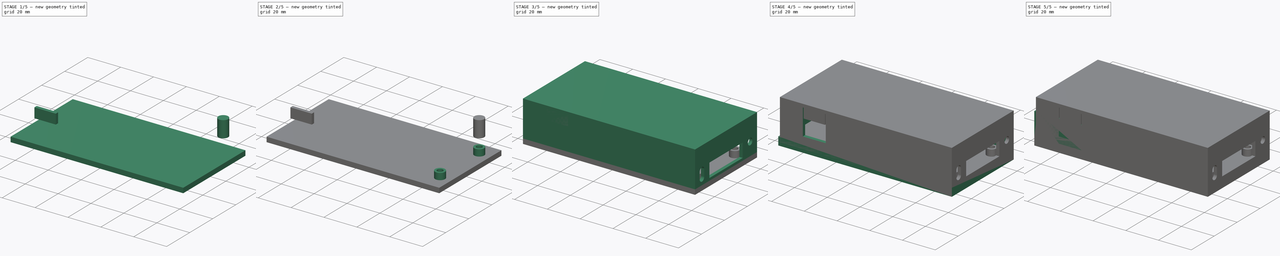
[diagram: build sequence overview — one tinted view per stage of 5, left to right]
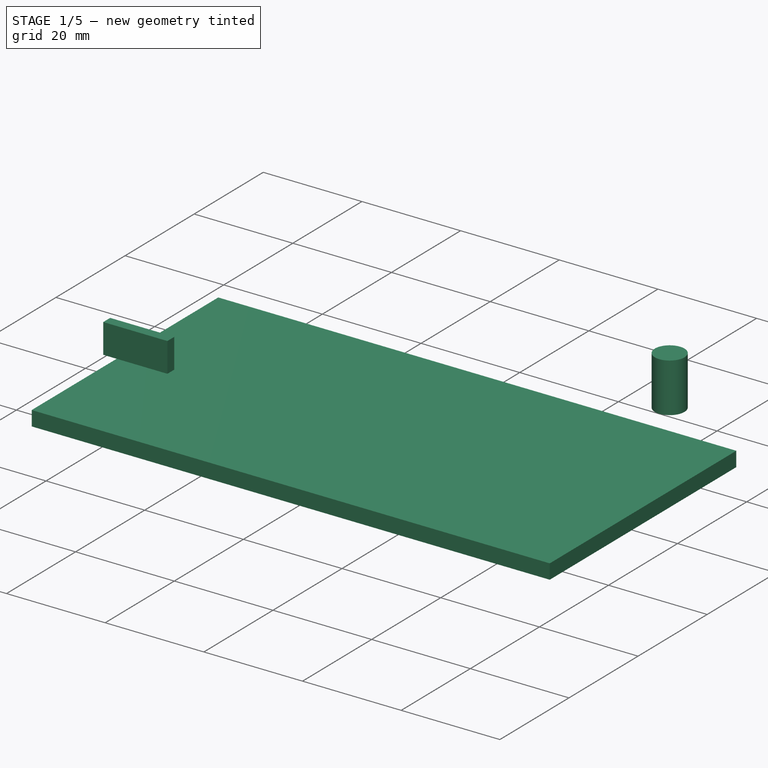
[diagram: stage 1 of 5 — iso view after this stage's code; geometry added in this stage tinted green]
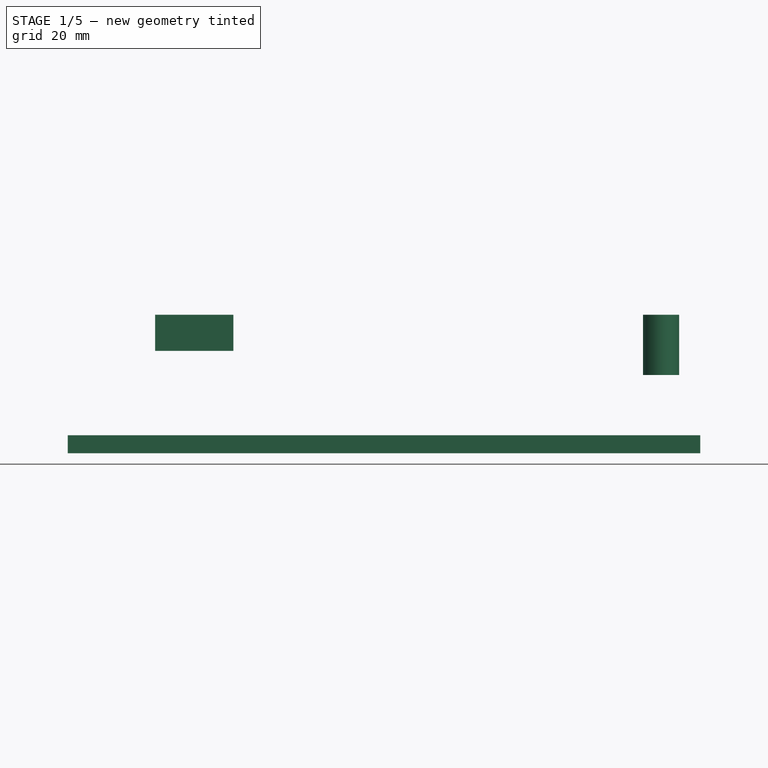
[diagram: stage 1 of 5 — front view after this stage's code; geometry added in this stage tinted green]
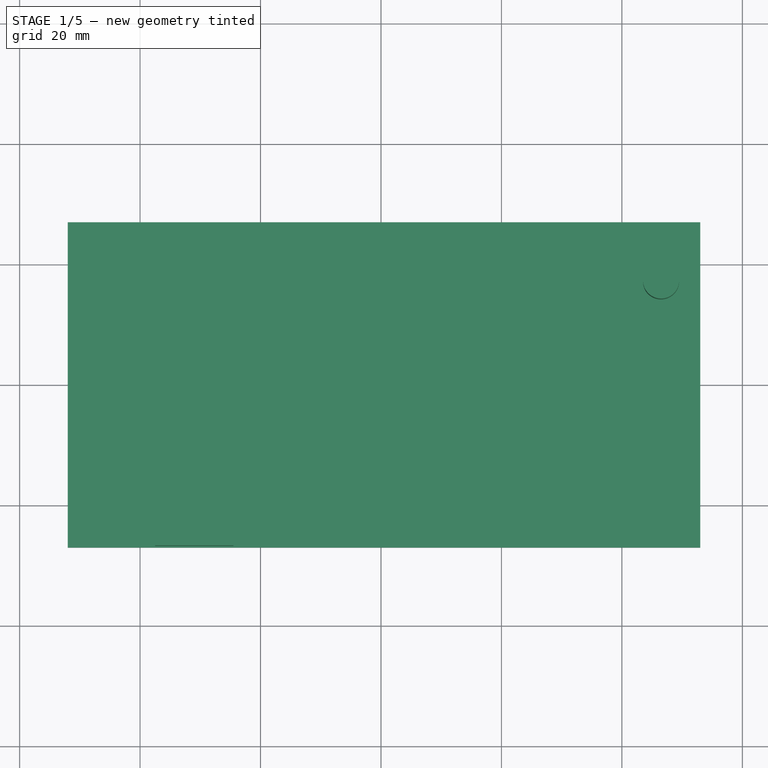
[diagram: stage 1 of 5 — top view after this stage's code; geometry added in this stage tinted green]
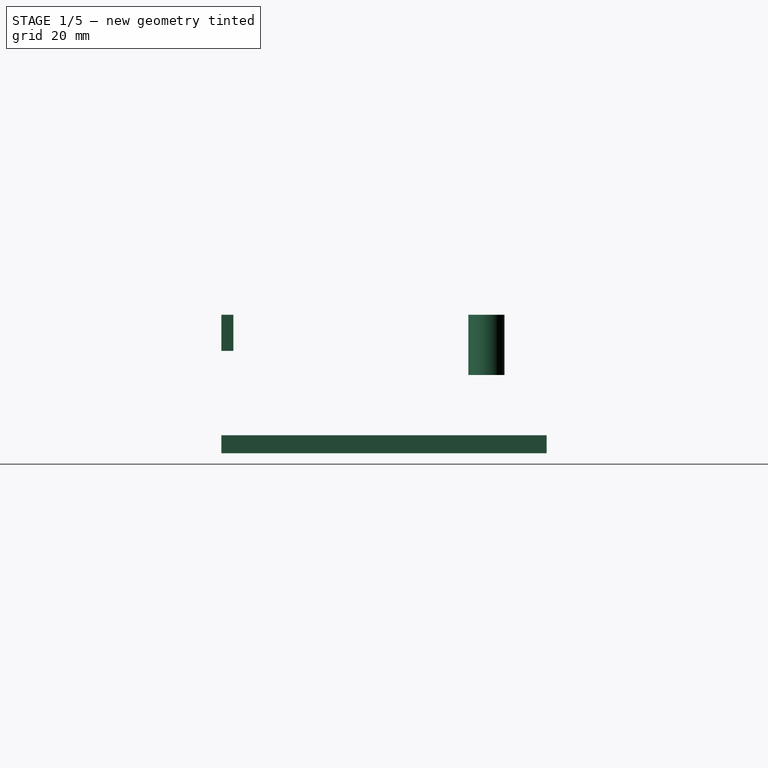
[diagram: stage 1 of 5 — right view after this stage's code; geometry added in this stage tinted green]
FCSTD DOCUMENT  (FreeCAD 0.18.4R)
Label: UltraSatan
License: All rights reserved
LicenseURL: http://en.wikipedia.org/wiki/All_rights_reserved
objects: App::Part×29, Sketcher::SketchObject×27, Part::Feature×27, PartDesign::Pad×14, PartDesign::Body×14, PartDesign::Pocket×13, PartDesign::FeatureBase×4, PartDesign::Hole×1
note: 128 computed .brp shape members not serialized (recipe doc carries the construction recipe); baked Part::Feature solids carry a one-line shape summary decoded from their .brp

FEATURE [Sketcher::SketchObject] Sketch016
  MapMode = 5
  Support = -> [XY_Plane014]
  sketch-geometry (4):
    g0: LineSegment StartX=-52 StartY=27 StartZ=0 EndX=53 EndY=27 EndZ=0
    g1: LineSegment StartX=53 StartY=27 StartZ=0 EndX=53 EndY=-27 EndZ=0
    g2: LineSegment StartX=53 StartY=-27 StartZ=0 EndX=-52 EndY=-27 EndZ=0
    g3: LineSegment StartX=-52 StartY=-27 StartZ=0 EndX=-52 EndY=27 EndZ=0
  constraints (11):
    c: Coincident(g0,g1)
    c: Coincident(g1,g2)
    c: Coincident(g2,g3)
    c: Coincident(g3,g0)
    c: Horizontal(g0)
    c: Horizontal(g2)
    c: Vertical(g1)
    c: Block(g0)
    c: Block(g1)
    c: Block(g2)
    c: Block(g3)
FEATURE [PartDesign::Pad] Pad009  label="Собственно дно"
  Length = 3
  Length2 = 100
  Profile = -> Sketch016
  Reversed = true
  Type = 0
FEATURE [PartDesign::Body] Body006  label="Передняя стенка"
  Group = -> [Sketch021,Pad012,Sketch022,Pocket007,Sketch023,Pocket008,Sketch024,Pocket009]
  Origin = -> Origin016
  Tip = -> Pocket009
FEATURE [Sketcher::SketchObject] Sketch025
  AttachmentOffset = pos=(0,0,20) rot=(0,0,1;0rad)
  MapMode = 5
  Placement = pos=(0,0,20) rot=(0,0,1;0rad)
  Support = -> [XY_Plane018]
  sketch-geometry (2):
    g0: Circle CenterX=46.5 CenterY=17 CenterZ=0 NormalX=0 NormalY=0 NormalZ=1 AngleXU=0 Radius=3
    g1: GeomPoint X=51 Y=25 Z=0
  constraints (5):
    c: Diameter(g0) = 6
    c: DistanceX(g1) = 51
    c: DistanceY(g1) = 25
    c: DistanceX(g0,g1) = 4.5
    c: DistanceY(g0,g1) = 8
FEATURE [PartDesign::Pad] Pad013
  Length = 10
  Length2 = 100
  Profile = -> Sketch025
  Reversed = true
  Type = 0
FEATURE [PartDesign::Body] Body014  label="Стойка задн"
  BaseFeature = -> Body012
  Group = -> [Clone003]
  Origin = -> Origin052
  Placement = pos=(-76.7,18.4,0) rot=(0,0,1;0rad)
  Tip = -> Clone003
FEATURE [Sketcher::SketchObject] Sketch028
  MapMode = 5
  Placement = pos=(0,0,-3) rot=(1,0,0;3.14159rad)
  Support = -> [Pad009]
  sketch-geometry (1):
    g0: Circle CenterX=46.5 CenterY=17 CenterZ=0 NormalX=0 NormalY=0 NormalZ=1 AngleXU=0 Radius=3.25
  constraints (3):
    c: Diameter(g0) = 6.5
    c: DistanceX(g0) = 46.5
    c: DistanceY(g0) = 17
FEATURE [PartDesign::Pocket] Pocket011  label="Отверстие под шляпку винта"
  BaseFeature = -> Pad009
  Length = 2
  Length2 = 100
  Profile = -> Sketch028
  Type = 0
FEATURE [Sketcher::SketchObject] Sketch029
  MapMode = 5
  Placement = pos=(0,0,-3) rot=(1,0,0;3.14159rad)
  Support = -> [Pocket011]
  sketch-geometry (1):
    g0: Circle CenterX=46.5 CenterY=-17 CenterZ=0 NormalX=0 NormalY=0 NormalZ=1 AngleXU=0 Radius=3.25
  constraints (3):
    c: Diameter(g0) = 6.5
    c: DistanceX(g0) = 46.5
    c: DistanceY(g0) = -17
FEATURE [PartDesign::Pocket] Pocket012
  BaseFeature = -> Pocket011
  Length = 2
  Length2 = 100
  Profile = -> Sketch029
  Type = 0
FEATURE [PartDesign::Body] Body004  label="Дно"
  Group = -> [Sketch016,Pad009,Sketch028,Pocket011,Sketch029,Pocket012,Sketch030,Pocket013]
  Origin = -> Origin014
  Tip = -> Pocket013
FEATURE [App::Part] Part  label="Низ"
  Group = -> [Body,Body004,Body002,Body003,Body005,Body012,Body013,Body014]
  Origin = -> Origin
FEATURE [PartDesign::Hole] Hole
  BaseFeature = -> Pad013
  Depth = 9
  DepthType = 0
  Diameter = 2
  DrillPoint = 1
  DrillPointAngle = 118
  HoleCutCountersinkAngle = 90
  HoleCutDepth = 0
  HoleCutDiameter = 0
  HoleCutType = 0
  ModelActualThread = false
  Profile = -> Pad013 [Face3]
  Tapered = false
  TaperedAngle = 90
  ThreadAngle = 0
  ThreadClass = 0
  ThreadCutOffInner = 0
  ThreadCutOffOuter = 0
  ThreadDirection = 0
  ThreadFit = 0
  ThreadPitch = 0
  ThreadSize = 0
  ThreadType = 0
  Threaded = false
FEATURE [PartDesign::Body] Body010  label="Стойка задняя"
  BaseFeature = -> Body008
  Group = -> [Clone001]
  Origin = -> Origin047
  Placement = pos=(-76.7,-15.6,0) rot=(0,0,1;0rad)
  Tip = -> Clone001
FEATURE [Sketcher::SketchObject] Sketch031
  AttachmentOffset = pos=(0,0,20) rot=(0,0,1;0rad)
  MapMode = 5
  Placement = pos=(0,0,20) rot=(0,0,1;0rad)
  Support = -> [XY_Plane053]
  sketch-geometry (4):
    g0: LineSegment StartX=-37.5 StartY=-25 StartZ=0 EndX=-24.5 EndY=-25 EndZ=0
    g1: LineSegment StartX=-24.5 StartY=-25 StartZ=0 EndX=-24.5 EndY=-27 EndZ=0
    g2: LineSegment StartX=-24.5 StartY=-27 StartZ=0 EndX=-37.5 EndY=-27 EndZ=0
    g3: LineSegment StartX=-37.5 StartY=-27 StartZ=0 EndX=-37.5 EndY=-25 EndZ=0
  constraints (11):
    c: Coincident(g0,g1)
    c: Coincident(g1,g2)
    c: Coincident(g2,g3)
    c: Coincident(g3,g0)
    c: Horizontal(g0)
    c: Horizontal(g2)
    c: Vertical(g1)
    c: Block(g0)
    c: Block(g1)
    c: Block(g2)
    c: Block(g3)
FEATURE [PartDesign::Pad] Pad015
  Length = 6
  Length2 = 100
  Profile = -> Sketch031
  Reversed = true
  Type = 0
FEATURE [PartDesign::Body] Body015  label="Левая стенка002"
  Group = -> [Sketch031,Pad015]
  Origin = -> Origin053
  Tip = -> Pad015
FEATURE [App::Part] Part001  label="Верх"
  Group = -> [Sketch013,Pad006,Body006,Body007,Body008,Body009,Body010,Body015]
  Origin = -> Origin010
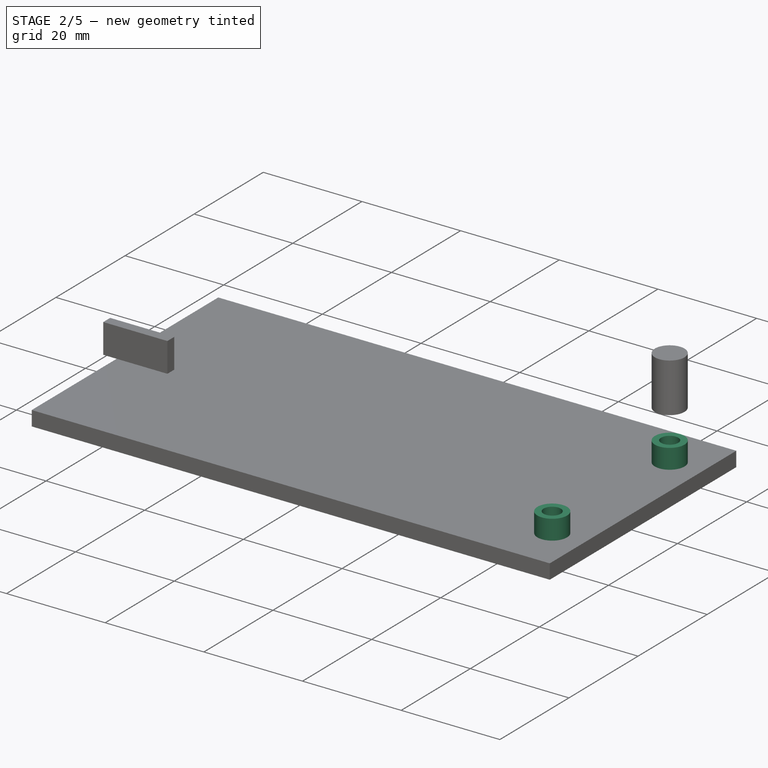
[diagram: stage 2 of 5 — iso view after this stage's code; geometry added in this stage tinted green]
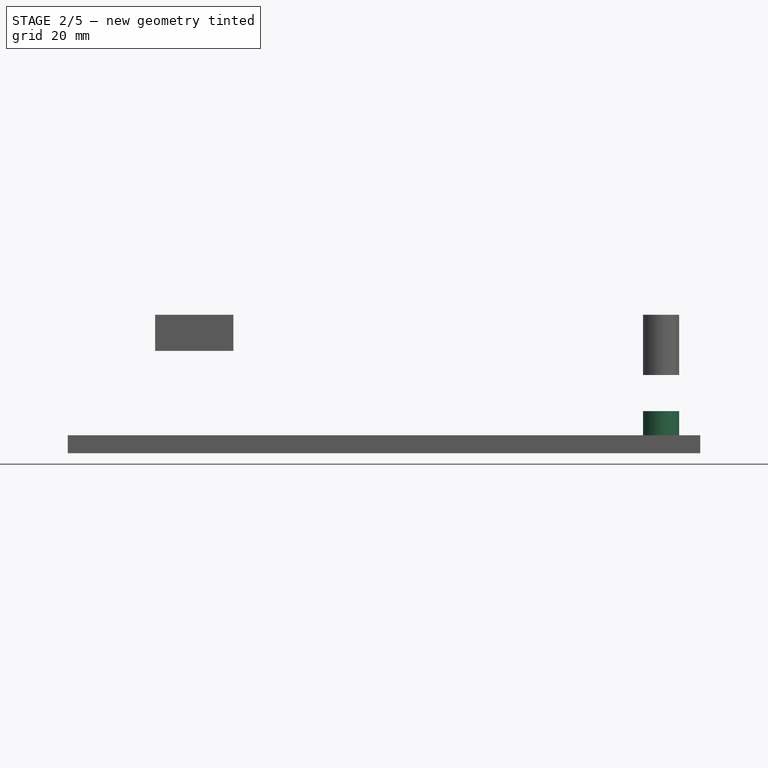
[diagram: stage 2 of 5 — front view after this stage's code; geometry added in this stage tinted green]
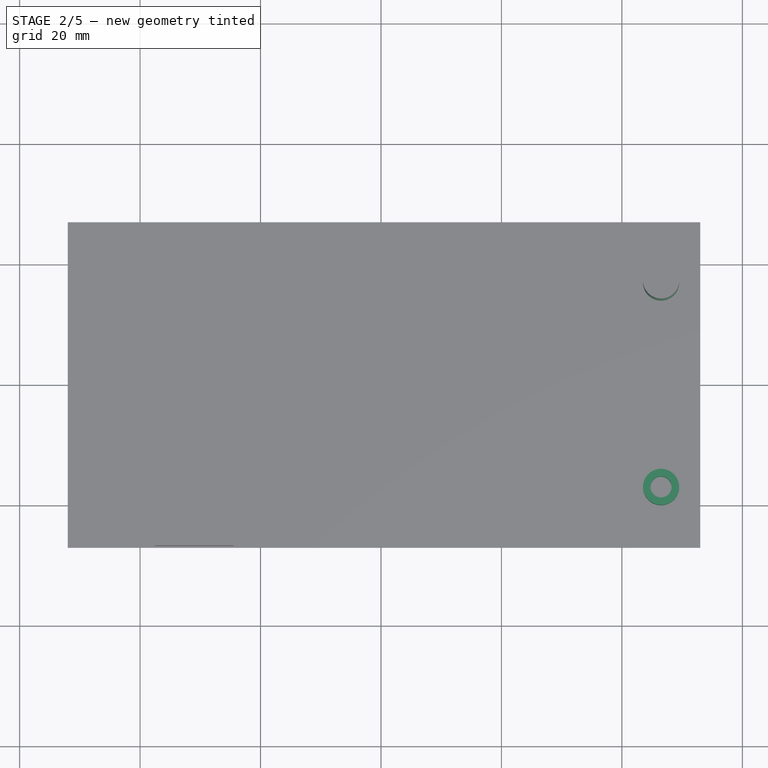
[diagram: stage 2 of 5 — top view after this stage's code; geometry added in this stage tinted green]
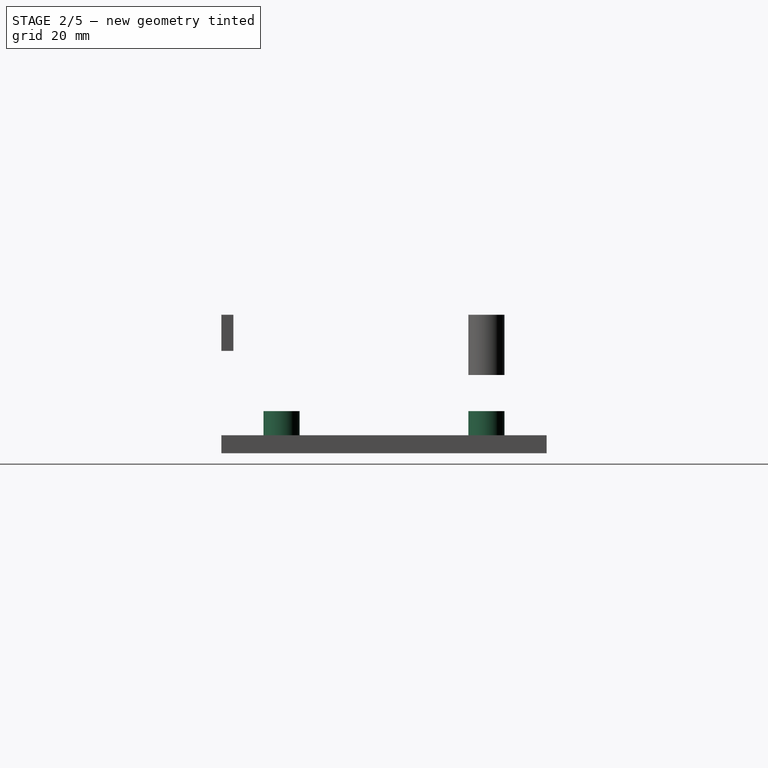
[diagram: stage 2 of 5 — right view after this stage's code; geometry added in this stage tinted green]
FEATURE [Part::Feature] Part__Feature007  label="SOLID005"
  shape: bbox 26 x 26 x 1.5 mm, 2684 faces (baked)
FEATURE [App::Part] LQFP_176_24x24mm_P0_5mm  label="LQFP-176_24x24mm_P0.5mm"
  Group = -> [Part__Feature007]
  Origin = -> Origin019
  Placement = pos=(-8.23,8.738,1.65) rot=(0,0,1;0rad)
FEATURE [Part::Feature] Part__Feature008  label="SOLID006"
  shape: bbox 6.128 x 6.515 x 7 mm, 49 faces (baked)
FEATURE [App::Part] CP_Radial_D5_0mm_P2_00mm  label="CP_Radial_D5.0mm_P2.00mm"
  Group = -> [Part__Feature008]
  Origin = -> Origin020
  Placement = pos=(12.92,19.91,1.65) rot=(0,0,1;1.5708rad)
FEATURE [Part::Feature] Part__Feature009  label="SOLID007"
  shape: bbox 1.6 x 0.8 x 0.45 mm, 26 faces (baked)
FEATURE [App::Part] R_0603_1608Metric
  Group = -> [Part__Feature009]
  Origin = -> Origin021
  Placement = pos=(43.5,16.5,1.65) rot=(0,0,1;1.5708rad)
FEATURE [Part::Feature] Part__Feature010  label="SOLID008"
  shape: bbox 9.886 x 10.23 x 10 mm, 54 faces (baked)
FEATURE [App::Part] CP_Radial_D8_0mm_P3_50mm  label="CP_Radial_D8.0mm_P3.50mm"
  Group = -> [Part__Feature010]
  Origin = -> Origin022
  Placement = pos=(-35.42,21.61,1.65) rot=(0,0,-1;1.5708rad)
FEATURE [Part::Feature] Part__Feature011  label="SOLID009"
  shape: bbox 9.886 x 10.23 x 10 mm, 54 faces (baked)
FEATURE [App::Part] CP_Radial_D8_0mm_P3_50mm001  label="CP_Radial_D8.0mm_P3.50mm001"
  Group = -> [Part__Feature011]
  Origin = -> Origin023
  Placement = pos=(-25.92,11.35,1.65) rot=(0,0,-1;1.5708rad)
FEATURE [Part::Feature] Part__Feature012  label="COMPOUND002"
  shape: bbox 9.505 x 14.5 x 13.83 mm, 40 faces, 2 solids (baked)
FEATURE [App::Part] User_Library_dc_range___dc_connector_4840_2201_001  label="User_Library-dc_range_-_dc_connector[4840_2201]001"
  Group = -> [Part__Feature012]
  Origin = -> Origin024
  Placement = pos=(-38.56,-12.84,1.65) rot=(0.57735,-0.57735,-0.57735;2.0944rad)
FEATURE [Part::Feature] Part__Feature013  label="SOLID010"
  shape: bbox 15 x 10 x 4.42 mm, 88 faces (baked)
FEATURE [App::Part] TO_263_3_TabPin4  label="TO-263-3_TabPin4"
  Group = -> [Part__Feature013]
  Origin = -> Origin025
  Placement = pos=(0.105,-17.86,1.65) rot=(0,0,1;0rad)
FEATURE [Part::Feature] Part__Feature014  label="SOLID011"
  shape: bbox 9.886 x 10.23 x 10 mm, 54 faces (baked)
FEATURE [App::Part] CP_Radial_D8_0mm_P3_50mm002  label="CP_Radial_D8.0mm_P3.50mm002"
  Group = -> [Part__Feature014]
  Origin = -> Origin026
  Placement = pos=(-10.765,-20.555,1.65) rot=(0,0,1;1.5708rad)
FEATURE [Part::Feature] Part__Feature015  label="SOLID012"
  shape: bbox 28 x 25 x 3.2 mm, 11 faces (baked)
FEATURE [App::Part] sdmmc
  Group = -> [Part__Feature015]
  Origin = -> Origin027
  Placement = pos=(36.86,-0.12,1.65) rot=(0,0,1;1.5708rad)
FEATURE [Part::Feature] Part__Feature016  label="SOLID013"
  shape: bbox 28 x 25 x 3.2 mm, 11 faces (baked)
FEATURE [App::Part] sdmmc001
  Group = -> [Part__Feature016]
  Origin = -> Origin028
  Placement = pos=(36.86,-0.12,-0.05) rot=(-0.707107,0.707107,0;3.14159rad)
FEATURE [Part::Feature] Part__Feature017  label="SOLID014"
  shape: bbox 6.128 x 6.515 x 7 mm, 49 faces (baked)
FEATURE [App::Part] CP_Radial_D5_0mm_P2_00mm001  label="CP_Radial_D5.0mm_P2.00mm001"
  Group = -> [Part__Feature017]
  Origin = -> Origin029
  Placement = pos=(19.56,-0.775,1.65) rot=(0,0,1;1.5708rad)
FEATURE [Part::Feature] Part__Feature018  label="SOLID015"
  shape: bbox 1.6 x 0.8 x 0.45 mm, 26 faces (baked)
FEATURE [App::Part] R_0603_1608Metric001
  Group = -> [Part__Feature018]
  Origin = -> Origin030
  Placement = pos=(42.555,-22.318,-0.05) rot=(0,1,0;3.14159rad)
FEATURE [Part::Feature] Part__Feature019  label="SOLID016"
  shape: bbox 1.6 x 0.8 x 0.45 mm, 26 faces (baked)
FEATURE [App::Part] R_0603_1608Metric002
  Group = -> [Part__Feature019]
  Origin = -> Origin031
  Placement = pos=(41.305,-16.035,1.65) rot=(0,0,1;0rad)
FEATURE [Part::Feature] Part__Feature020  label="SOLID017"
  shape: bbox 13.55 x 33.06 x 12.1 mm, 462 faces (baked)
FEATURE [App::Part] IDC_Header_2x10_P2_54mm_Horizontal001  label="IDC-Header_2x10_P2.54mm_Horizontal001"
  Group = -> [Part__Feature020]
  Origin = -> Origin032
  Placement = pos=(-42.15,-5.81,1.65) rot=(0,0,1;3.14159rad)
FEATURE [Part::Feature] Part__Feature021  label="SOLID018"
  shape: bbox 2.5 x 3 x 1.2 mm, 76 faces (baked)
FEATURE [App::Part] SOT_23  label="SOT-23"
  Group = -> [Part__Feature021]
  Origin = -> Origin033
  Placement = pos=(-34.895,0.5625,-0.05) rot=(0,1,0;3.14159rad)
FEATURE [Part::Feature] Part__Feature022  label="SOLID019"
  shape: bbox 1.6 x 0.8 x 0.45 mm, 26 faces (baked)
FEATURE [App::Part] R_0603_1608Metric003
  Group = -> [Part__Feature022]
  Origin = -> Origin034
  Placement = pos=(-30.45,-2.025,-0.05) rot=(0.707107,0.707107,0;3.14159rad)
FEATURE [Part::Feature] Part__Feature023  label="SOLID020"
  shape: bbox 6 x 8.7 x 1.75 mm, 246 faces (baked)
FEATURE [App::Part] SOIC_14_3_9x8_7mm_P1_27mm  label="SOIC-14_3.9x8.7mm_P1.27mm"
  Group = -> [Part__Feature023]
  Origin = -> Origin035
  Placement = pos=(-31.85,-11.04,-0.05) rot=(0,1,0;3.14159rad)
FEATURE [Part::Feature] Part__Feature024  label="SOLID021"
  shape: bbox 11.05 x 4.65 x 7 mm, 26 faces (baked)
FEATURE [App::Part] Crystal_HC49_4H_Vertical  label="Crystal_HC49-4H_Vertical"
  Group = -> [Part__Feature024]
  Origin = -> Origin036
  Placement = pos=(-8,17,-0.55) rot=(0,1,0;3.14159rad)
FEATURE [Part::Feature] Part__Feature025  label="SOLID022"
  shape: bbox 3.4 x 3.8 x 10.8 mm, 16 faces (baked)
FEATURE [App::Part] LED_D3_0mm003  label="LED_D3.0mm003"
  Group = -> [Part__Feature025]
  Origin = -> Origin037
  Placement = pos=(46.5,22.27,2.65) rot=(0.57735,-0.57735,0.57735;4.18879rad)
FEATURE [Part::Feature] Part__Feature026  label="SOLID023"
  shape: bbox 3.4 x 3.8 x 10.8 mm, 16 faces (baked)
FEATURE [App::Part] LED_D3_0mm004  label="LED_D3.0mm004"
  Group = -> [Part__Feature026]
  Origin = -> Origin038
  Placement = pos=(46.5,-22.27,-1.05) rot=(0.57735,0.57735,0.57735;2.0944rad)
FEATURE [Part::Feature] Part__Feature027  label="SOLID024"
  shape: bbox 3.4 x 3.8 x 10.8 mm, 16 faces (baked)
FEATURE [App::Part] LED_D3_0mm005  label="LED_D3.0mm005"
  Group = -> [Part__Feature027]
  Origin = -> Origin039
  Placement = pos=(46.5,-19.73,2.65) rot=(0.57735,-0.57735,0.57735;4.18879rad)
FEATURE [Part::Feature] Part__Feature028  label="SOLID025"
  shape: bbox 1.6 x 0.8 x 0.45 mm, 26 faces (baked)
FEATURE [App::Part] R_0603_1608Metric004
  Group = -> [Part__Feature028]
  Origin = -> Origin040
  Placement = pos=(-27.5,0.75,1.65) rot=(0,0,-1;1.5708rad)
FEATURE [Part::Feature] Part__Feature029  label="SOLID026"
  shape: bbox 1.6 x 0.8 x 0.45 mm, 26 faces (baked)
FEATURE [App::Part] R_0603_1608Metric005
  Group = -> [Part__Feature029]
  Origin = -> Origin041
  Placement = pos=(-27.5,3.5,1.65) rot=(0,0,1;3.14159rad)
FEATURE [Part::Feature] Part__Feature030  label="SOLID027"
  shape: bbox 1.6 x 0.8 x 0.45 mm, 26 faces (baked)
FEATURE [App::Part] R_0603_1608Metric006
  Group = -> [Part__Feature030]
  Origin = -> Origin042
  Placement = pos=(-31.5,4.5,1.65) rot=(0,0,1;3.14159rad)
FEATURE [Part::Feature] Part__Feature031  label="SOLID028"
  Placement = pos=(0,0,-2) rot=(0,0,1;0rad)
  shape: bbox 15.06 x 19.01 x 10.5 mm, 128 faces (baked)
FEATURE [App::Part] User_Library_KCD11001  label="User_Library-KCD012"
  Group = -> [Part__Feature031]
  Origin = -> Origin043
  Placement = pos=(-30.7,-19.67,6.15) rot=(0,0,1;3.14159rad)
FEATURE [Part::Feature] Part__Feature032  label="SOLID029"
  shape: bbox 6 x 6 x 4.2 mm, 60 faces (baked)
FEATURE [App::Part] L_Bourns_SRN6045TA
  Group = -> [Part__Feature032]
  Origin = -> Origin044
  Placement = pos=(-22.05,18.69,-0.05) rot=(-0.707107,0.707107,0;3.14159rad)
FEATURE [Part::Feature] Part__Feature033  label="COMPOUND003"
  shape: bbox 99 x 48 x 1.6 mm, 116 faces (baked)
FEATURE [App::Part] Open_CASCADE_STEP_translator_6_9_1001  label="Open CASCADE STEP translator 6.9 002"
  Group = -> [LQFP_176_24x24mm_P0_5mm,CP_Radial_D5_0mm_P2_00mm,R_0603_1608Metric,CP_Radial_D8_0mm_P3_50mm,CP_Radial_D8_0mm_P3_50mm001,User_Library_dc_range___dc_connector_4840_2201_001,TO_263_3_TabPin4,CP_Radial_D8_0mm_P3_50mm002,sdmmc,sdmmc001,CP_Radial_D5_0mm_P2_00mm001,R_0603_1608Metric001,R_0603_1608Metric002,IDC_Header_2x10_P2_54mm_Horizontal001,SOT_23,R_0603_1608Metric003,SOIC_14_3_9x8_7mm_P1_27mm,+10 more]
  Origin = -> Origin045
  Placement = pos=(0,0,5) rot=(0,0,1;0rad)
FEATURE [Sketcher::SketchObject] Sketch026
  MapMode = 5
  Support = -> [XY_Plane050]
  sketch-geometry (1):
    g0: Circle CenterX=46.5 CenterY=17 CenterZ=0 NormalX=0 NormalY=0 NormalZ=1 AngleXU=0 Radius=3
  constraints (3):
    c: Radius(g0) = 3
    c: DistanceX(g0) = 46.5
    c: DistanceY(g-1,g0) = 17
FEATURE [PartDesign::Pad] Pad014
  Length = 4
  Length2 = 100
  Profile = -> Sketch026
  Type = 0
FEATURE [Sketcher::SketchObject] Sketch027
  MapMode = 5
  Placement = pos=(0,0,0) rot=(1,0,0;3.14159rad)
  Support = -> [Pad014]
  sketch-geometry (1):
    g0: Circle CenterX=46.5 CenterY=-17 CenterZ=0 NormalX=0 NormalY=0 NormalZ=1 AngleXU=0 Radius=1.75
  constraints (3):
    c: DistanceY(g0) = -17
    c: Diameter(g0) = 3.5
    c: DistanceX(g0) = 46.5
FEATURE [PartDesign::Pocket] Pocket010
  BaseFeature = -> Pad014
  Length = 2
  Length2 = 100
  Profile = -> Sketch027
  Type = 2
FEATURE [PartDesign::Body] Body012  label="Стойка лев"
  Group = -> [Sketch026,Pad014,Sketch027,Pocket010]
  Origin = -> Origin050
  Placement = pos=(0,-34,0) rot=(0,0,1;0rad)
  Tip = -> Pocket010
FEATURE [PartDesign::FeatureBase] Clone002
  BaseFeature = -> Body012
FEATURE [PartDesign::Body] Body013  label="Стойка прав"
  BaseFeature = -> Body012
  Group = -> [Clone002]
  Origin = -> Origin051
  Tip = -> Clone002
FEATURE [PartDesign::FeatureBase] Clone003
  BaseFeature = -> Body012
  Placement = pos=(0,-34,0) rot=(0,0,1;0rad)
FEATURE [Sketcher::SketchObject] Sketch030
  ExternalGeometry = -> [Pocket012]
  MapMode = 5
  Placement = pos=(0,0,-3) rot=(1,0,0;3.14159rad)
  Support = -> [Pocket012]
  sketch-geometry (1):
    g0: Circle CenterX=-30.2 CenterY=-1.4 CenterZ=0 NormalX=0 NormalY=0 NormalZ=1 AngleXU=0 Radius=3.25
  constraints (3):
    c: Diameter(g0) = 6.5
    c: DistanceX(g0,g-3) = 76.7
    c: DistanceY(g-3,g0) = 15.6
FEATURE [PartDesign::Pocket] Pocket013
  BaseFeature = -> Pocket012
  Length = 2
  Length2 = 100
  Profile = -> Sketch030
  Type = 0
FEATURE [PartDesign::Body] Body008  label="Стойка правая"
  Group = -> [Sketch025,Pad013,Hole]
  Origin = -> Origin018
  Tip = -> Hole
FEATURE [PartDesign::FeatureBase] Clone
  BaseFeature = -> Body008
FEATURE [PartDesign::Body] Body009  label="Стойка левая"
  BaseFeature = -> Body008
  Group = -> [Clone]
  Origin = -> Origin046
  Placement = pos=(0,-34,0) rot=(0,0,1;0rad)
  Tip = -> Clone
FEATURE [PartDesign::FeatureBase] Clone001
  BaseFeature = -> Body008
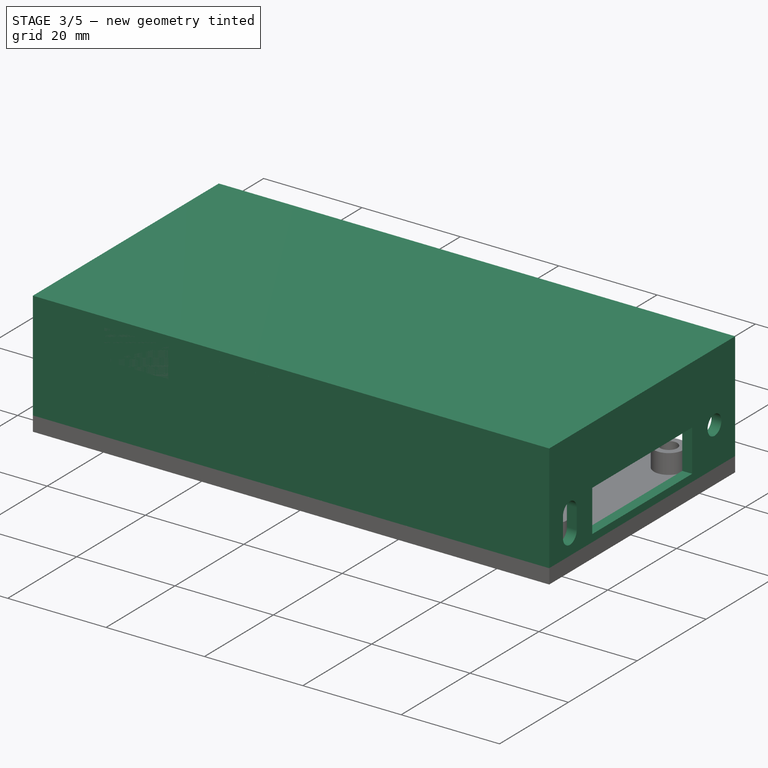
[diagram: stage 3 of 5 — iso view after this stage's code; geometry added in this stage tinted green]
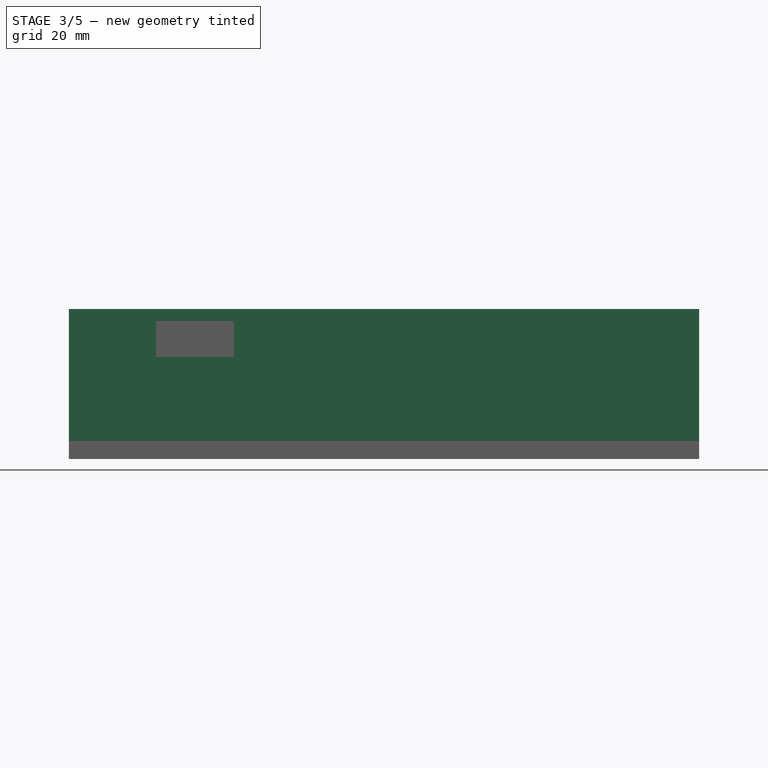
[diagram: stage 3 of 5 — front view after this stage's code; geometry added in this stage tinted green]
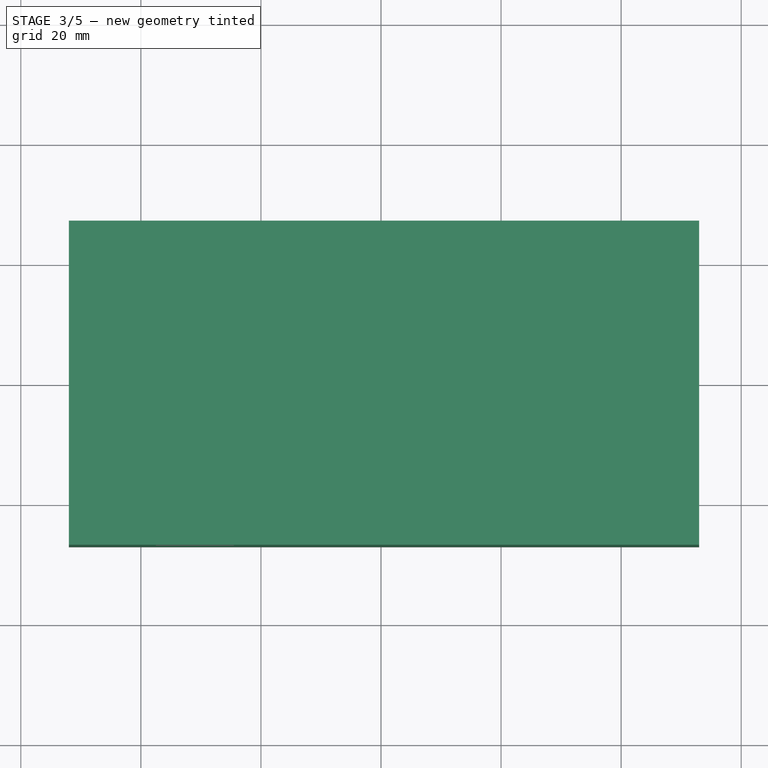
[diagram: stage 3 of 5 — top view after this stage's code; geometry added in this stage tinted green]
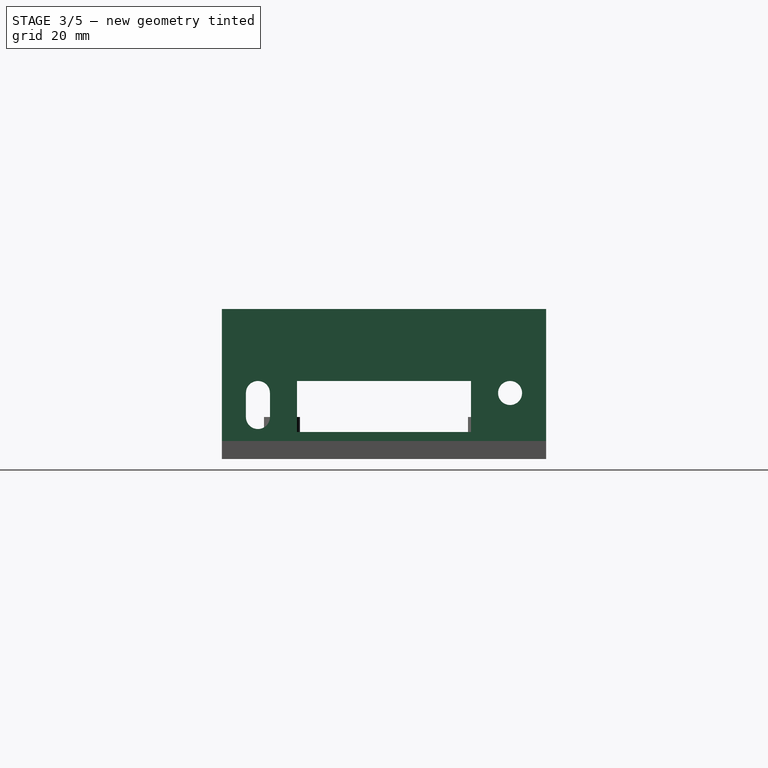
[diagram: stage 3 of 5 — right view after this stage's code; geometry added in this stage tinted green]
FEATURE [PartDesign::Body] Body002  label="Правая стенка"
  Group = -> [Sketch014,Pad007]
  Origin = -> Origin012
  Tip = -> Pad007
FEATURE [Sketcher::SketchObject] Sketch015
  MapMode = 5
  Support = -> [XY_Plane013]
  sketch-geometry (4):
    g0: LineSegment StartX=-52 StartY=-25 StartZ=0 EndX=51 EndY=-25 EndZ=0
    g1: LineSegment StartX=51 StartY=-25 StartZ=0 EndX=51 EndY=-27 EndZ=0
    g2: LineSegment StartX=51 StartY=-27 StartZ=0 EndX=-52 EndY=-27 EndZ=0
    g3: LineSegment StartX=-52 StartY=-27 StartZ=0 EndX=-52 EndY=-25 EndZ=0
  constraints (11):
    c: Coincident(g0,g1)
    c: Coincident(g1,g2)
    c: Coincident(g2,g3)
    c: Coincident(g3,g0)
    c: Horizontal(g0)
    c: Horizontal(g2)
    c: Vertical(g1)
    c: Block(g0)
    c: Block(g1)
    c: Block(g2)
    c: Block(g3)
FEATURE [PartDesign::Pad] Pad008  label="Собственно левая стенка"
  Length = 20
  Length2 = 100
  Profile = -> Sketch015
  Type = 0
FEATURE [PartDesign::Body] Body003  label="Левая стенка001"
  Group = -> [Sketch015,Pad008,Sketch017,Pocket006]
  Origin = -> Origin013
  Tip = -> Pocket006
FEATURE [Sketcher::SketchObject] Sketch020
  AttachmentOffset = pos=(0,0,22) rot=(0,0,1;0rad)
  MapMode = 5
  Placement = pos=(0,0,22) rot=(0,0,1;0rad)
  Support = -> [XY_Plane017]
  sketch-geometry (4):
    g0: LineSegment StartX=-52 StartY=27 StartZ=0 EndX=53 EndY=27 EndZ=0
    g1: LineSegment StartX=53 StartY=27 StartZ=0 EndX=53 EndY=-27 EndZ=0
    g2: LineSegment StartX=53 StartY=-27 StartZ=0 EndX=-52 EndY=-27 EndZ=0
    g3: LineSegment StartX=-52 StartY=-27 StartZ=0 EndX=-52 EndY=27 EndZ=0
  constraints (11):
    c: Coincident(g0,g1)
    c: Coincident(g1,g2)
    c: Coincident(g2,g3)
    c: Coincident(g3,g0)
    c: Horizontal(g0)
    c: Horizontal(g2)
    c: Vertical(g1)
    c: Block(g0)
    c: Block(g1)
    c: Block(g2)
    c: Block(g3)
FEATURE [PartDesign::Pad] Pad011
  Length = 2
  Length2 = 100
  Profile = -> Sketch020
  Reversed = true
  Type = 0
FEATURE [PartDesign::Body] Body007  label="Крышка"
  Group = -> [Sketch020,Pad011]
  Origin = -> Origin017
  Tip = -> Pad011
FEATURE [Sketcher::SketchObject] Sketch021
  AttachmentOffset = pos=(0,0,20) rot=(0,0,1;0rad)
  MapMode = 5
  Placement = pos=(0,0,20) rot=(0,0,1;0rad)
  Support = -> [XY_Plane016]
  sketch-geometry (4):
    g0: LineSegment StartX=53 StartY=27 StartZ=0 EndX=51 EndY=27 EndZ=0
    g1: LineSegment StartX=51 StartY=27 StartZ=0 EndX=51 EndY=-27 EndZ=0
    g2: LineSegment StartX=51 StartY=-27 StartZ=0 EndX=53 EndY=-27 EndZ=0
    g3: LineSegment StartX=53 StartY=-27 StartZ=0 EndX=53 EndY=27 EndZ=0
  constraints (11):
    c: Coincident(g0,g1)
    c: Coincident(g1,g2)
    c: Coincident(g2,g3)
    c: Coincident(g3,g0)
    c: Horizontal(g0)
    c: Horizontal(g2)
    c: Vertical(g1)
    c: Block(g0)
    c: Block(g1)
    c: Block(g2)
    c: Block(g3)
FEATURE [PartDesign::Pad] Pad012
  Length = 20
  Length2 = 100
  Profile = -> Sketch021
  Reversed = true
  Type = 0
FEATURE [Sketcher::SketchObject] Sketch022  label="Access LEDs"
  MapMode = 5
  Placement = pos=(53,0,0) rot=(0.57735,0.57735,0.57735;2.0944rad)
  Support = -> [Pad012]
  sketch-geometry (4):
    g0: LineSegment StartX=-19 StartY=4 StartZ=0 EndX=-19 EndY=8 EndZ=0
    g1: LineSegment StartX=-23 StartY=4 StartZ=0 EndX=-23 EndY=8 EndZ=0
    g2: ArcOfCircle CenterX=-21 CenterY=4 CenterZ=0 NormalX=0 NormalY=0 NormalZ=1 AngleXU=0 Radius=2 StartAngle=3.14159 EndAngle=6.28319
    g3: ArcOfCircle CenterX=-21 CenterY=8 CenterZ=0 NormalX=0 NormalY=0 NormalZ=1 AngleXU=0 Radius=2 StartAngle=0 EndAngle=3.14159
  constraints (10):
    c: Vertical(g0)
    c: Vertical(g1)
    c: Coincident(g2,g1)
    c: Coincident(g2,g0)
    c: Coincident(g3,g0)
    c: Coincident(g3,g1)
    c: Block(g0)
    c: Block(g1)
    c: Block(g2)
    c: Block(g3)
FEATURE [PartDesign::Pocket] Pocket007
  BaseFeature = -> Pad012
  Length = 5
  Length2 = 100
  Profile = -> Sketch022
  Type = 2
FEATURE [Sketcher::SketchObject] Sketch023
  MapMode = 5
  Placement = pos=(53,0,0) rot=(0.57735,0.57735,0.57735;2.0944rad)
  Support = -> [Pocket007]
  sketch-geometry (1):
    g0: Circle CenterX=21 CenterY=8 CenterZ=0 NormalX=0 NormalY=0 NormalZ=1 AngleXU=0 Radius=2
  constraints (1):
    c: Block(g0)
FEATURE [PartDesign::Pocket] Pocket008
  BaseFeature = -> Pocket007
  Length = 5
  Length2 = 100
  Profile = -> Sketch023
  Type = 2
FEATURE [Sketcher::SketchObject] Sketch024
  MapMode = 5
  Placement = pos=(53,0,0) rot=(0.57735,0.57735,0.57735;2.0944rad)
  Support = -> [Pocket008]
  sketch-geometry (4):
    g0: LineSegment StartX=-14.5 StartY=10 StartZ=0 EndX=14.5 EndY=10 EndZ=0
    g1: LineSegment StartX=14.5 StartY=10 StartZ=0 EndX=14.5 EndY=1.5 EndZ=0
    g2: LineSegment StartX=14.5 StartY=1.5 StartZ=0 EndX=-14.5 EndY=1.5 EndZ=0
    g3: LineSegment StartX=-14.5 StartY=1.5 StartZ=0 EndX=-14.5 EndY=10 EndZ=0
  constraints (11):
    c: Coincident(g0,g1)
    c: Coincident(g1,g2)
    c: Coincident(g2,g3)
    c: Coincident(g3,g0)
    c: Horizontal(g0)
    c: Horizontal(g2)
    c: Vertical(g1)
    c: Block(g0)
    c: Block(g1)
    c: Block(g2)
    c: Block(g3)
FEATURE [PartDesign::Pocket] Pocket009
  BaseFeature = -> Pocket008
  Length = 5
  Length2 = 100
  Profile = -> Sketch024
  Type = 2
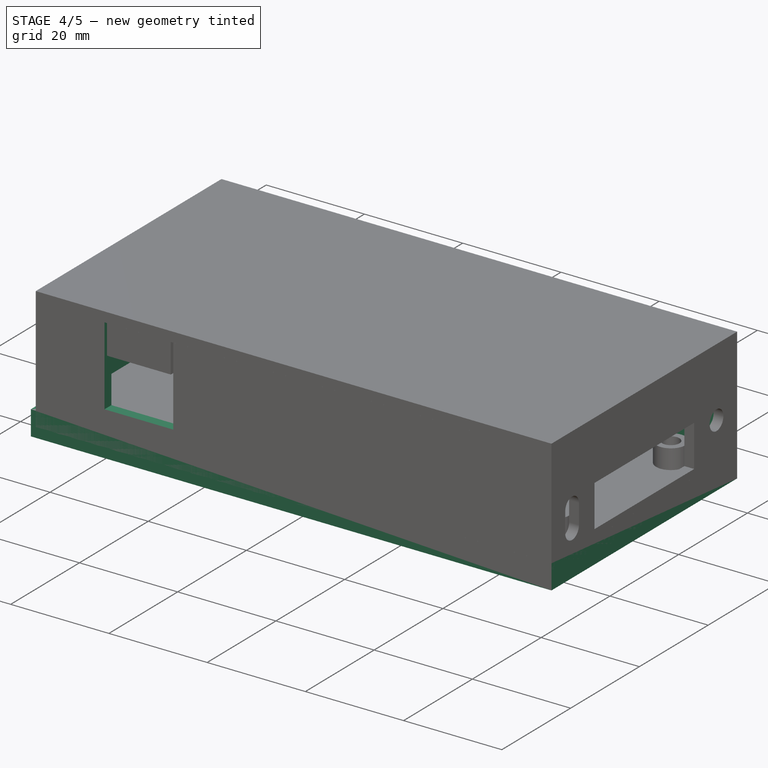
[diagram: stage 4 of 5 — iso view after this stage's code; geometry added in this stage tinted green]
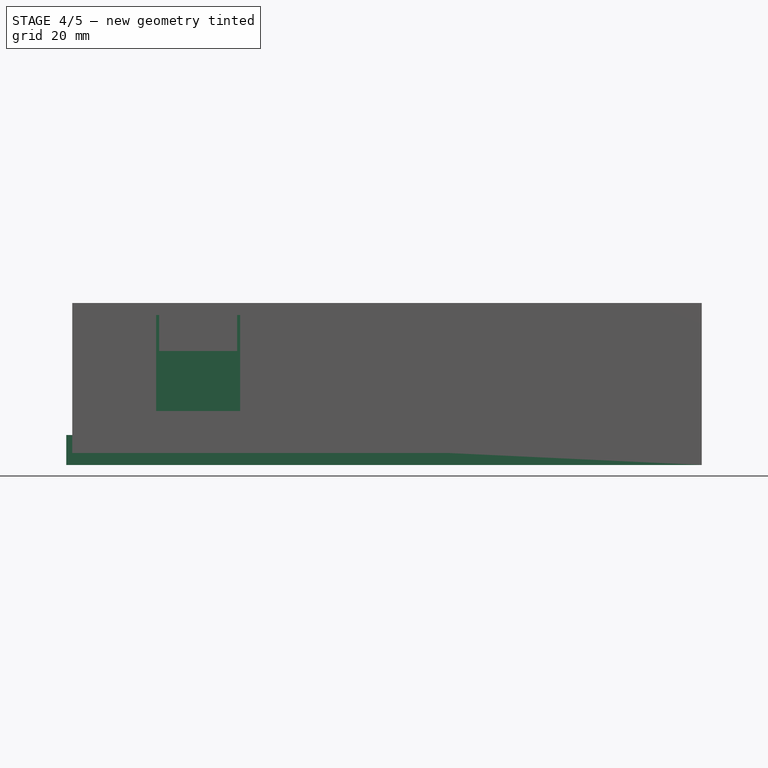
[diagram: stage 4 of 5 — front view after this stage's code; geometry added in this stage tinted green]
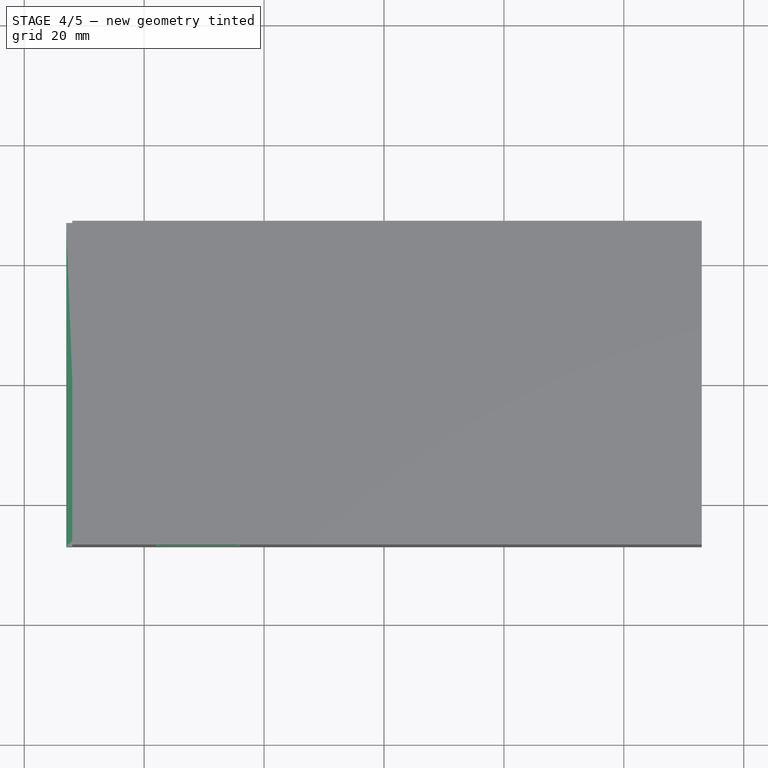
[diagram: stage 4 of 5 — top view after this stage's code; geometry added in this stage tinted green]
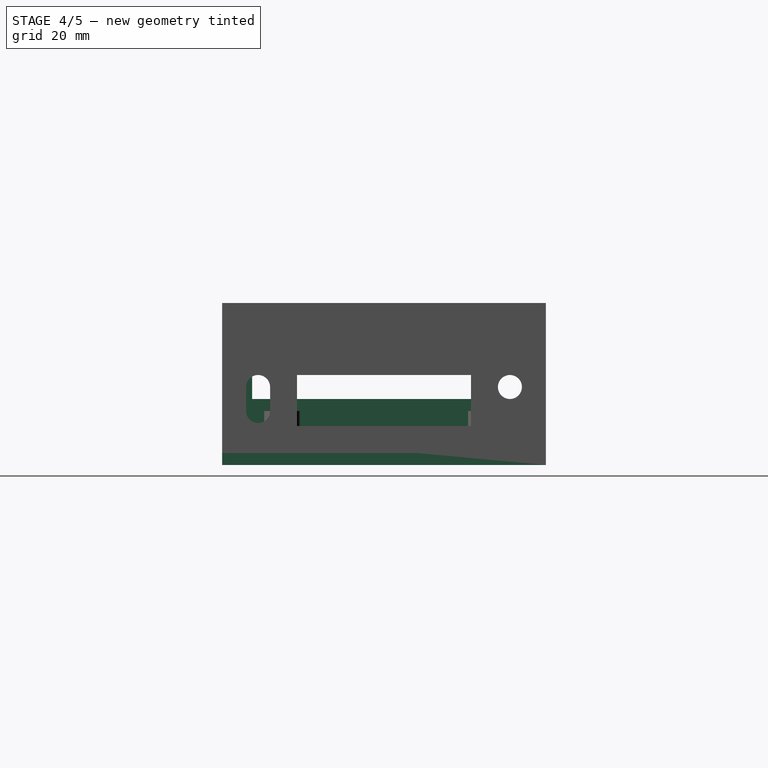
[diagram: stage 4 of 5 — right view after this stage's code; geometry added in this stage tinted green]
FEATURE [Sketcher::SketchObject] Sketch  label="Эскиз платы"
  MapMode = 5
  Support = -> [XY_Plane001]
  sketch-geometry (15):
    g0: LineSegment [constr] StartX=-49.5 StartY=24 StartZ=0 EndX=49.5 EndY=24 EndZ=0
    g1: LineSegment [constr] StartX=49.5 StartY=24 StartZ=0 EndX=49.5 EndY=-24 EndZ=0
    g2: LineSegment [constr] StartX=49.5 StartY=-24 StartZ=0 EndX=-24 EndY=-24 EndZ=0
    g3: LineSegment [constr] StartX=-24 StartY=-24 StartZ=0 EndX=-24 EndY=-19.5 EndZ=0
    g4: LineSegment [constr] StartX=-24 StartY=-19.5 StartZ=0 EndX=-37.5 EndY=-19.5 EndZ=0
    g5: LineSegment [constr] StartX=-37.5 StartY=-19.5 StartZ=0 EndX=-37.5 EndY=-24 EndZ=0
    g6: LineSegment [constr] StartX=-37.5 StartY=-24 StartZ=0 EndX=-49.5 EndY=-24 EndZ=0
    g7: LineSegment [constr] StartX=-49.5 StartY=-24 StartZ=0 EndX=-49.5 EndY=24 EndZ=0
    g8: Circle [constr] CenterX=-30.2 CenterY=1.5 CenterZ=0 NormalX=0 NormalY=0 NormalZ=1 AngleXU=0 Radius=1.5
    g9: Circle [constr] CenterX=46.5 CenterY=17 CenterZ=0 NormalX=0 NormalY=0 NormalZ=1 AngleXU=0 Radius=1.5
    g10: Circle [constr] CenterX=46.5 CenterY=-17 CenterZ=0 NormalX=0 NormalY=0 NormalZ=1 AngleXU=0 Radius=1.5
    g11: LineSegment StartX=-51 StartY=25 StartZ=0 EndX=51 EndY=25 EndZ=0
    g12: LineSegment StartX=51 StartY=25 StartZ=0 EndX=51 EndY=-25 EndZ=0
    g13: LineSegment StartX=51 StartY=-25 StartZ=0 EndX=-51 EndY=-25 EndZ=0
    g14: LineSegment StartX=-51 StartY=-25 StartZ=0 EndX=-51 EndY=25 EndZ=0
  constraints (42):
    c: Coincident(g0,g1)
    c: Coincident(g1,g2)
    c: Coincident(g2,g3)
    c: Coincident(g3,g4)
    c: Coincident(g4,g5)
    c: Vertical(g5)
    c: Coincident(g5,g6)
    c: Horizontal(g6)
    c: Coincident(g6,g7)
    c: Coincident(g7,g0)
    c: Parallel(g0,g2)
    c: Parallel(g7,g-2)
    c: Parallel(g5,g3)
    c: Parallel(g4,g-1)
    c: DistanceX(g0,g0) = 99
    c: Symmetric(g0,g0,g-2)
    c: Equal(g1,g7)
    c: Symmetric(g0,g1,g-1)
    c: DistanceY(g1,g1) = 48
    c: DistanceX(g2,g2) = 73.5
    c: DistanceX(g4,g4) = 13.5
    c: DistanceY(g5,g5) = 4.5
    c: DistanceX(g0,g8) = 19.3
    c: DistanceY(g3,g8) = 21
    c: DistanceX(g9,g0) = 3
    c: Diameter(g9) = 3
    c: DistanceY(g9,g0) = 7
    c: Diameter(g8) = 3
    c: Diameter(g10) = 3
    c: DistanceX(g10,g1) = 3
    c: DistanceY(g1,g10) = 7
    c: Coincident(g11,g12)
    c: Coincident(g12,g13)
    c: Coincident(g13,g14)
    c: Coincident(g14,g11)
    c: Horizontal(g11)
    c: Horizontal(g13)
    c: Vertical(g14)
    c: Block(g11)
    c: Block(g14)
    c: Block(g13)
    c: Block(g12)
FEATURE [Sketcher::SketchObject] Sketch001  label="Эскиз основания"
  MapMode = 5
  Support = -> [XY_Plane001]
  sketch-geometry (4):
    g0: LineSegment StartX=-53 StartY=27 StartZ=0 EndX=53 EndY=27 EndZ=0
    g1: LineSegment StartX=53 StartY=27 StartZ=0 EndX=53 EndY=-27 EndZ=0
    g2: LineSegment StartX=53 StartY=-27 StartZ=0 EndX=-53 EndY=-27 EndZ=0
    g3: LineSegment StartX=-53 StartY=-27 StartZ=0 EndX=-53 EndY=27 EndZ=0
  constraints (10):
    c: Coincident(g0,g1)
    c: Coincident(g1,g2)
    c: Coincident(g2,g3)
    c: Coincident(g3,g0)
    c: Horizontal(g0)
    c: Vertical(g3)
    c: Block(g1)
    c: Block(g0)
    c: Block(g3)
    c: Block(g2)
FEATURE [PartDesign::Pad] Pad  label="Основание"
  Length = 5
  Length2 = 100
  Profile = -> Sketch001
  Reversed = true
  Type = 0
FEATURE [PartDesign::Pocket] Pocket  label="Нижняя крышка"
  BaseFeature = -> Pad
  Length = 3
  Length2 = 100
  Profile = -> Sketch
  Type = 0
FEATURE [PartDesign::Body] Body  label="Нижняя часть"
  Group = -> [Sketch,Sketch001,Pad,Pocket,Sketch002,Pocket001,Sketch004,Pocket002,Sketch005,Pad001,Sketch006,Pocket003,Sketch007,Pad002,Sketch008,Pad003]
  Origin = -> Origin001
  Tip = -> Pad003
FEATURE [Sketcher::SketchObject] Sketch013  label="Основание задника"
  MapMode = 5
  Placement = pos=(0,0,20) rot=(1,0,0;3.14159rad)
  sketch-geometry (4):
    g0: LineSegment StartX=-52 StartY=22 StartZ=0 EndX=-50 EndY=22 EndZ=0
    g1: LineSegment StartX=-50 StartY=22 StartZ=0 EndX=-50 EndY=-23 EndZ=0
    g2: LineSegment StartX=-50 StartY=-23 StartZ=0 EndX=-52 EndY=-23 EndZ=0
    g3: LineSegment StartX=-52 StartY=-23 StartZ=0 EndX=-52 EndY=22 EndZ=0
  constraints (11):
    c: Coincident(g0,g1)
    c: Coincident(g1,g2)
    c: Coincident(g2,g3)
    c: Coincident(g3,g0)
    c: Horizontal(g0)
    c: Horizontal(g2)
    c: Vertical(g1)
    c: Block(g0)
    c: Block(g1)
    c: Block(g2)
    c: Block(g3)
FEATURE [PartDesign::Pad] Pad006  label="Задник"
  Length = 2
  Length2 = 100
  Placement = pos=(0,0,20) rot=(1,0,0;3.14159rad)
  Profile = -> Sketch013
  Type = 0
FEATURE [Sketcher::SketchObject] Sketch014
  MapMode = 5
  Support = -> [XY_Plane012]
  sketch-geometry (4):
    g0: LineSegment StartX=-52 StartY=27 StartZ=0 EndX=51 EndY=27 EndZ=0
    g1: LineSegment StartX=51 StartY=27 StartZ=0 EndX=51 EndY=25 EndZ=0
    g2: LineSegment StartX=51 StartY=25 StartZ=0 EndX=-52 EndY=25 EndZ=0
    g3: LineSegment StartX=-52 StartY=25 StartZ=0 EndX=-52 EndY=27 EndZ=0
  constraints (11):
    c: Coincident(g0,g1)
    c: Coincident(g1,g2)
    c: Coincident(g2,g3)
    c: Coincident(g3,g0)
    c: Horizontal(g0)
    c: Horizontal(g2)
    c: Vertical(g1)
    c: Block(g0)
    c: Block(g1)
    c: Block(g2)
    c: Block(g3)
FEATURE [PartDesign::Pad] Pad007  label="Собственно правая стенка"
  Length = 20
  Length2 = 100
  Profile = -> Sketch014
  Type = 0
FEATURE [Sketcher::SketchObject] Sketch017
  MapMode = 5
  Placement = pos=(0,-27,0) rot=(1,0,0;1.5708rad)
  Support = -> [Pad008]
  sketch-geometry (4):
    g0: LineSegment StartX=-38 StartY=20 StartZ=0 EndX=-24 EndY=20 EndZ=0
    g1: LineSegment StartX=-24 StartY=20 StartZ=0 EndX=-24 EndY=4 EndZ=0
    g2: LineSegment StartX=-24 StartY=4 StartZ=0 EndX=-38 EndY=4 EndZ=0
    g3: LineSegment StartX=-38 StartY=4 StartZ=0 EndX=-38 EndY=20 EndZ=0
  constraints (11):
    c: Coincident(g0,g1)
    c: Coincident(g1,g2)
    c: Coincident(g2,g3)
    c: Coincident(g3,g0)
    c: Horizontal(g0)
    c: Horizontal(g2)
    c: Vertical(g1)
    c: Block(g0)
    c: Block(g1)
    c: Block(g2)
    c: Block(g3)
FEATURE [Sketcher::SketchObject] Sketch018
  MapMode = 5
  Support = -> [XY_Plane015]
  sketch-geometry (4):
    g0: LineSegment StartX=-52 StartY=25 StartZ=0 EndX=-50 EndY=25 EndZ=0
    g1: LineSegment StartX=-50 StartY=25 StartZ=0 EndX=-50 EndY=-25 EndZ=0
    g2: LineSegment StartX=-50 StartY=-25 StartZ=0 EndX=-52 EndY=-25 EndZ=0
    g3: LineSegment StartX=-52 StartY=-25 StartZ=0 EndX=-52 EndY=25 EndZ=0
  constraints (11):
    c: Coincident(g0,g1)
    c: Coincident(g1,g2)
    c: Coincident(g2,g3)
    c: Coincident(g3,g0)
    c: Horizontal(g0)
    c: Horizontal(g2)
    c: Vertical(g1)
    c: Block(g0)
    c: Block(g1)
    c: Block(g2)
    c: Block(g3)
FEATURE [PartDesign::Pad] Pad010
  Length = 20
  Length2 = 100
  Profile = -> Sketch018
  Type = 0
FEATURE [Sketcher::SketchObject] Sketch019
  MapMode = 5
  Placement = pos=(-52,0,0) rot=(0.57735,-0.57735,-0.57735;2.0944rad)
  Support = -> [Pad010]
  sketch-geometry (4):
    g0: LineSegment StartX=-23 StartY=21 StartZ=0 EndX=22 EndY=21 EndZ=0
    g1: LineSegment StartX=22 StartY=21 StartZ=0 EndX=22 EndY=6 EndZ=0
    g2: LineSegment StartX=22 StartY=6 StartZ=0 EndX=-23 EndY=6 EndZ=0
    g3: LineSegment StartX=-23 StartY=6 StartZ=0 EndX=-23 EndY=21 EndZ=0
  constraints (11):
    c: Coincident(g0,g1)
    c: Coincident(g1,g2)
    c: Coincident(g2,g3)
    c: Coincident(g3,g0)
    c: Horizontal(g0)
    c: Horizontal(g2)
    c: Vertical(g1)
    c: Block(g0)
    c: Block(g1)
    c: Block(g2)
    c: Block(g3)
FEATURE [PartDesign::Pocket] Pocket005
  BaseFeature = -> Pad010
  Length = 5
  Length2 = 100
  Profile = -> Sketch019
  Type = 2
FEATURE [PartDesign::Body] Body005  label="Задняя стенка"
  Group = -> [Sketch018,Pad010,Sketch019,Pocket005]
  Origin = -> Origin015
  Tip = -> Pocket005
FEATURE [PartDesign::Pocket] Pocket006
  BaseFeature = -> Pad008
  Length = 5
  Length2 = 100
  Profile = -> Sketch017
  Type = 2
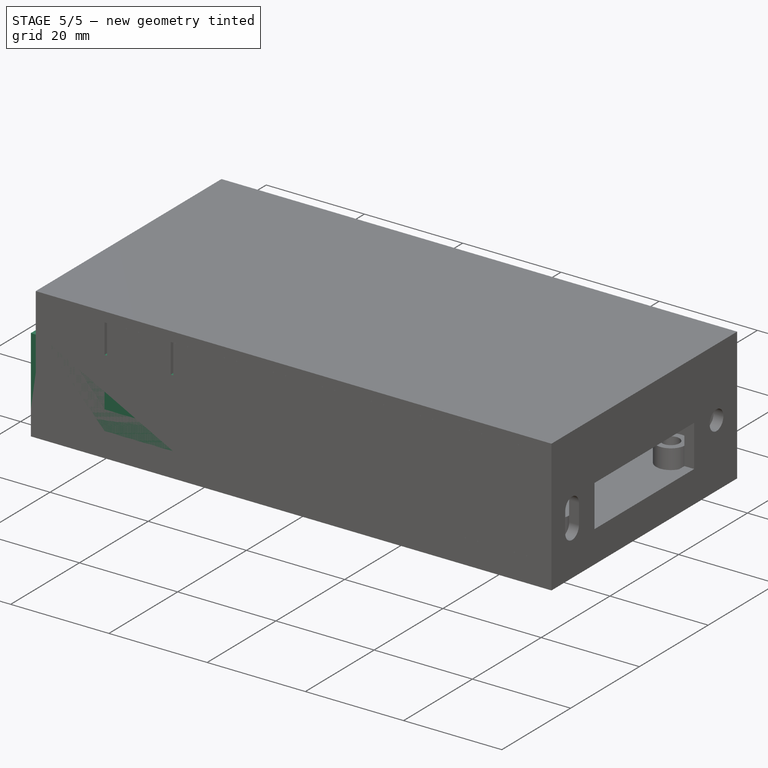
[diagram: stage 5 of 5 — iso view after this stage's code; geometry added in this stage tinted green]
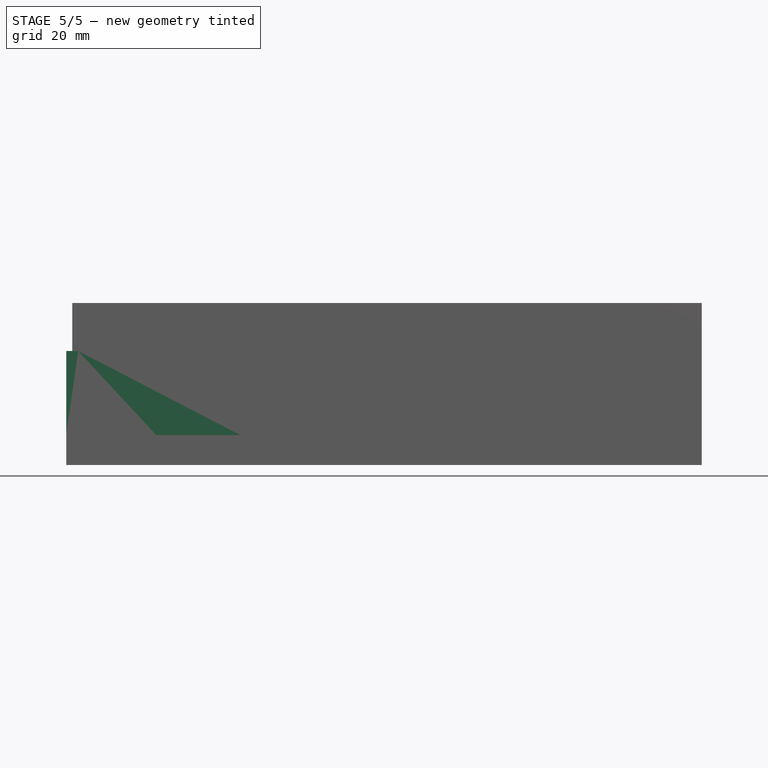
[diagram: stage 5 of 5 — front view after this stage's code; geometry added in this stage tinted green]
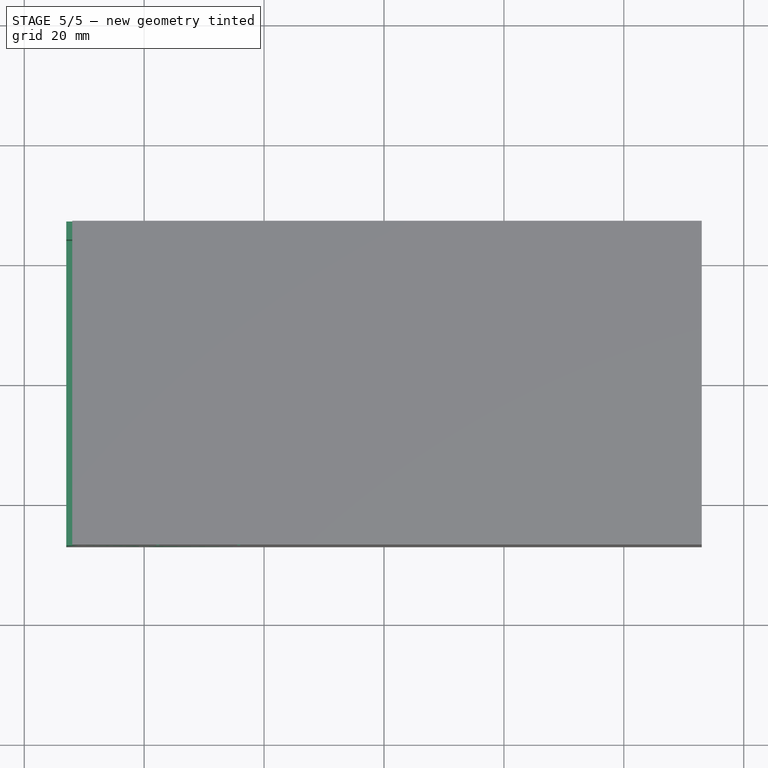
[diagram: stage 5 of 5 — top view after this stage's code; geometry added in this stage tinted green]
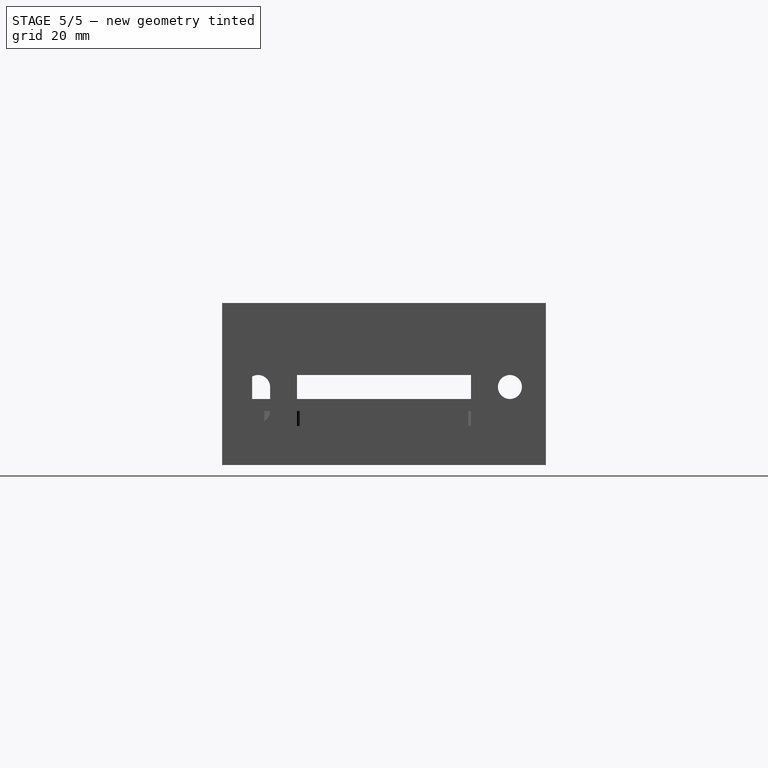
[diagram: stage 5 of 5 — right view after this stage's code; geometry added in this stage tinted green]
FEATURE [Sketcher::SketchObject] Sketch002  label="Отверстие под нижний LED"
  MapMode = 5
  Placement = pos=(53,0,0) rot=(0.57735,0.57735,0.57735;2.0944rad)
  Support = -> [Pocket]
  sketch-geometry (1):
    g0: Circle CenterX=-21 CenterY=0 CenterZ=0 NormalX=0 NormalY=0 NormalZ=1 AngleXU=0 Radius=2
  constraints (2):
    c: PointOnObject(g0,g-1)
    c: Block(g0)
FEATURE [PartDesign::Pocket] Pocket001  label="Вырез под нижний LED"
  BaseFeature = -> Pocket
  Length = 5
  Length2 = 100
  Profile = -> Sketch002
  Type = 2
FEATURE [Sketcher::SketchObject] Sketch004  label="Вырез под выключатель"
  MapMode = 5
  Placement = pos=(0,-27,0) rot=(1,0,0;1.5708rad)
  Support = -> [Pocket]
  sketch-geometry (4):
    g0: LineSegment StartX=-38 StartY=2 StartZ=0 EndX=-24 EndY=2 EndZ=0
    g1: LineSegment StartX=-24 StartY=2 StartZ=0 EndX=-24 EndY=-1 EndZ=0
    g2: LineSegment StartX=-24 StartY=-1 StartZ=0 EndX=-38 EndY=-1 EndZ=0
    g3: LineSegment StartX=-38 StartY=-1 StartZ=0 EndX=-38 EndY=2 EndZ=0
  constraints (11):
    c: Coincident(g0,g1)
    c: Coincident(g1,g2)
    c: Coincident(g2,g3)
    c: Coincident(g3,g0)
    c: Horizontal(g0)
    c: Horizontal(g2)
    c: Vertical(g3)
    c: Block(g0)
    c: Block(g3)
    c: Block(g2)
    c: Block(g1)
FEATURE [PartDesign::Pocket] Pocket002
  BaseFeature = -> Pocket001
  Length = 5
  Length2 = 100
  Profile = -> Sketch004
  Type = 0
FEATURE [Sketcher::SketchObject] Sketch005  label="Скетч задней стенки"
  ExternalGeometry = -> [Pocket002]
  MapMode = 5
  Support = -> [Pocket002]
  sketch-geometry (4):
    g0: LineSegment StartX=-53 StartY=27 StartZ=0 EndX=-51 EndY=27 EndZ=0
    g1: LineSegment StartX=-51 StartY=27 StartZ=0 EndX=-51 EndY=-27 EndZ=0
    g2: LineSegment StartX=-51 StartY=-27 StartZ=0 EndX=-53 EndY=-27 EndZ=0
    g3: LineSegment StartX=-53 StartY=-27 StartZ=0 EndX=-53 EndY=27 EndZ=0
  constraints (12):
    c: Coincident(g0,g1)
    c: Coincident(g1,g2)
    c: Coincident(g2,g3)
    c: Coincident(g3,g0)
    c: Horizontal(g0)
    c: Horizontal(g2)
    c: Vertical(g1)
    c: Vertical(g3)
    c: PointOnObject(g-3,g3)
    c: PointOnObject(g-4,g1)
    c: PointOnObject(g-3,g0)
    c: PointOnObject(g-3,g2)
FEATURE [PartDesign::Pad] Pad001  label="Задняя стеночка"
  BaseFeature = -> Pocket002
  Length = 14
  Length2 = 100
  Profile = -> Sketch005
  Type = 0
FEATURE [Sketcher::SketchObject] Sketch006  label="Вырез на задней стеночке"
  MapMode = 5
  Placement = pos=(-53,0,0) rot=(0.57735,-0.57735,-0.57735;2.0944rad)
  Support = -> [Pad001]
  sketch-geometry (4):
    g0: LineSegment StartX=-24 StartY=14 StartZ=0 EndX=24 EndY=14 EndZ=0
    g1: LineSegment StartX=24 StartY=14 StartZ=0 EndX=24 EndY=1 EndZ=0
    g2: LineSegment StartX=24 StartY=1 StartZ=0 EndX=-24 EndY=1 EndZ=0
    g3: LineSegment StartX=-24 StartY=1 StartZ=0 EndX=-24 EndY=14 EndZ=0
  constraints (11):
    c: Coincident(g0,g1)
    c: Coincident(g1,g2)
    c: Coincident(g2,g3)
    c: Coincident(g3,g0)
    c: Horizontal(g0)
    c: Horizontal(g2)
    c: Vertical(g1)
    c: Block(g0)
    c: Block(g1)
    c: Block(g2)
    c: Block(g3)
FEATURE [PartDesign::Pocket] Pocket003  label="Задняя стеночка с вырезом"
  BaseFeature = -> Pad001
  Length = 5
  Length2 = 100
  Profile = -> Sketch006
  Type = 2
FEATURE [Sketcher::SketchObject] Sketch007  label="Основание правой стеночки"
  ExternalGeometry = -> [Pocket003]
  MapMode = 5
  Support = -> [Pocket003]
  sketch-geometry (4):
    g0: LineSegment StartX=-51 StartY=27 StartZ=0 EndX=51 EndY=27 EndZ=0
    g1: LineSegment StartX=51 StartY=27 StartZ=0 EndX=51 EndY=25 EndZ=0
    g2: LineSegment StartX=51 StartY=25 StartZ=0 EndX=-51 EndY=25 EndZ=0
    g3: LineSegment StartX=-51 StartY=25 StartZ=0 EndX=-51 EndY=27 EndZ=0
  constraints (12):
    c: Coincident(g0,g1)
    c: Coincident(g1,g2)
    c: Coincident(g2,g3)
    c: Coincident(g3,g0)
    c: Horizontal(g0)
    c: Horizontal(g2)
    c: Vertical(g1)
    c: Vertical(g3)
    c: PointOnObject(g-3,g1)
    c: PointOnObject(g-5,g0)
    c: PointOnObject(g-5,g3)
    c: PointOnObject(g-3,g2)
FEATURE [PartDesign::Pad] Pad002  label="Правая стеночка"
  BaseFeature = -> Pocket003
  Length = 14
  Length2 = 100
  Profile = -> Sketch007
  Type = 0
FEATURE [Sketcher::SketchObject] Sketch008  label="Основание левой стенки"
  MapMode = 5
  Support = -> [Pad002]
  sketch-geometry (4):
    g0: LineSegment StartX=-51 StartY=-25 StartZ=0 EndX=51 EndY=-25 EndZ=0
    g1: LineSegment StartX=51 StartY=-25 StartZ=0 EndX=51 EndY=-27 EndZ=0
    g2: LineSegment StartX=51 StartY=-27 StartZ=0 EndX=-51 EndY=-27 EndZ=0
    g3: LineSegment StartX=-51 StartY=-27 StartZ=0 EndX=-51 EndY=-25 EndZ=0
  constraints (11):
    c: Coincident(g0,g1)
    c: Coincident(g1,g2)
    c: Coincident(g2,g3)
    c: Coincident(g3,g0)
    c: Horizontal(g0)
    c: Horizontal(g2)
    c: Vertical(g1)
    c: Block(g0)
    c: Block(g1)
    c: Block(g2)
    c: Block(g3)
FEATURE [PartDesign::Pad] Pad003  label="Левая стенка"
  BaseFeature = -> Pad002
  Length = 14
  Length2 = 100
  Profile = -> Sketch008
  Type = 0
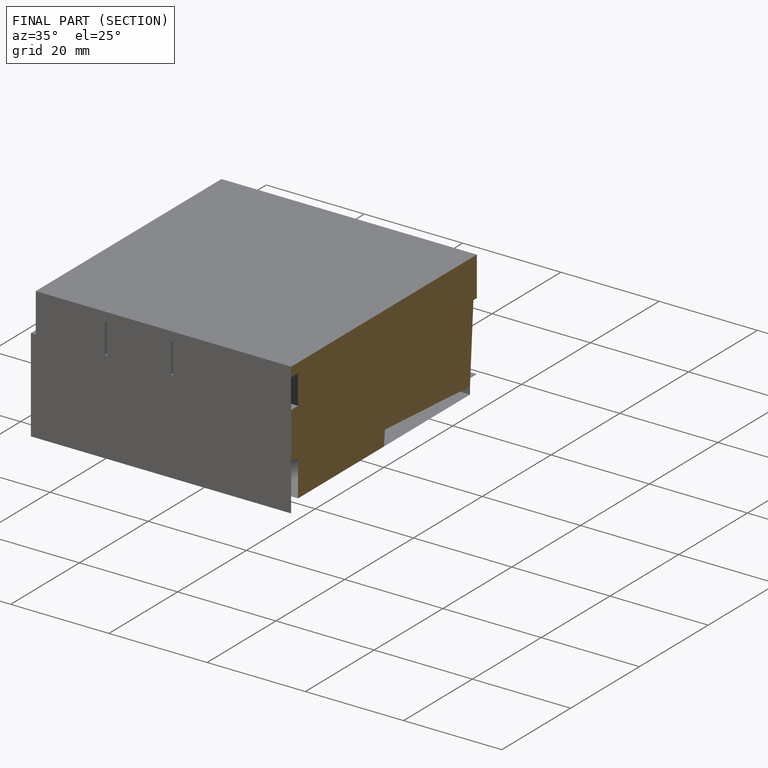
[diagram: finished part — half-section view (interior)]
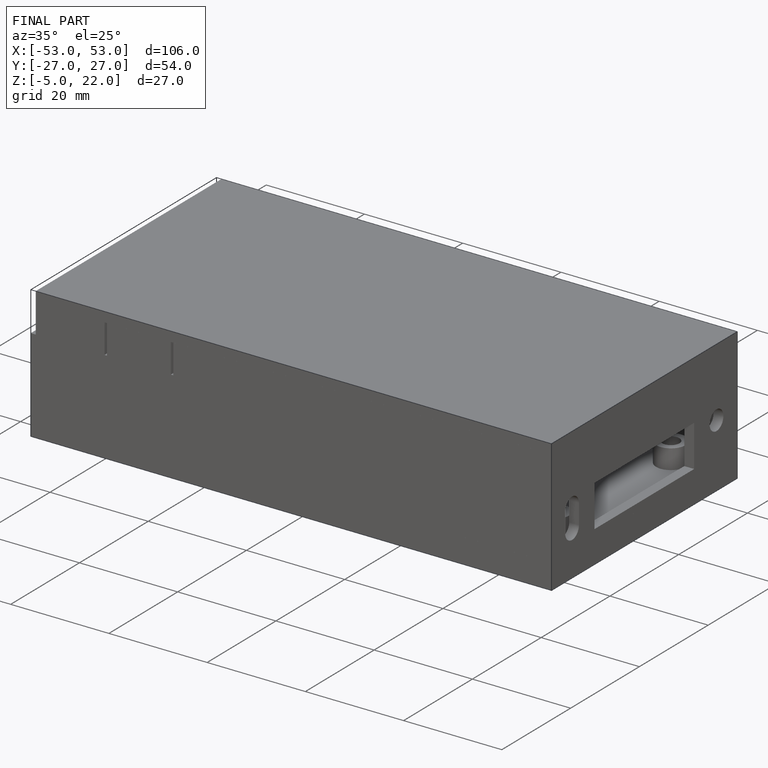
[diagram: finished part — iso view with bounding-box wireframe]
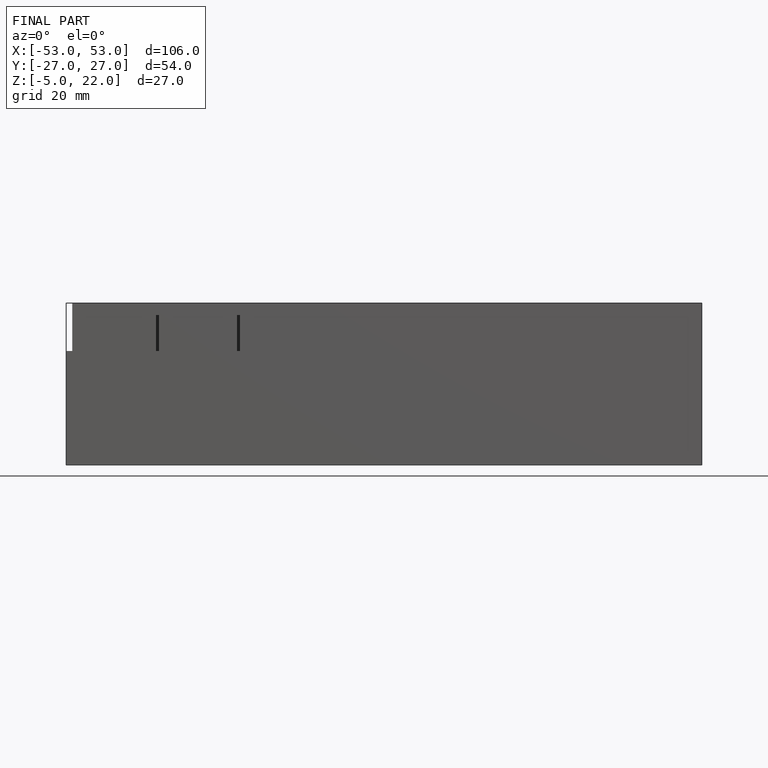
[diagram: finished part — front view with bounding-box wireframe]
